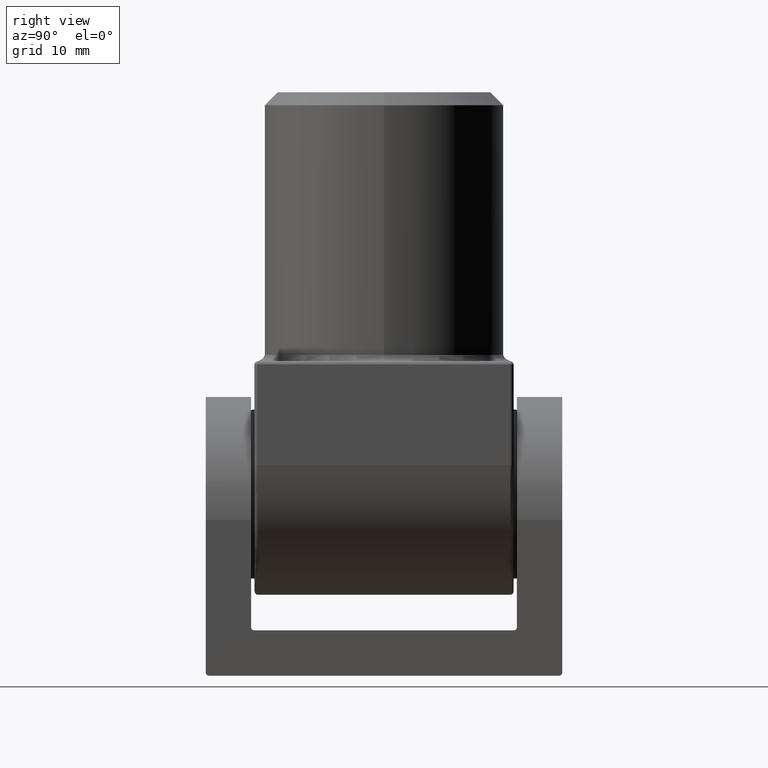
[diagram: clean part render]
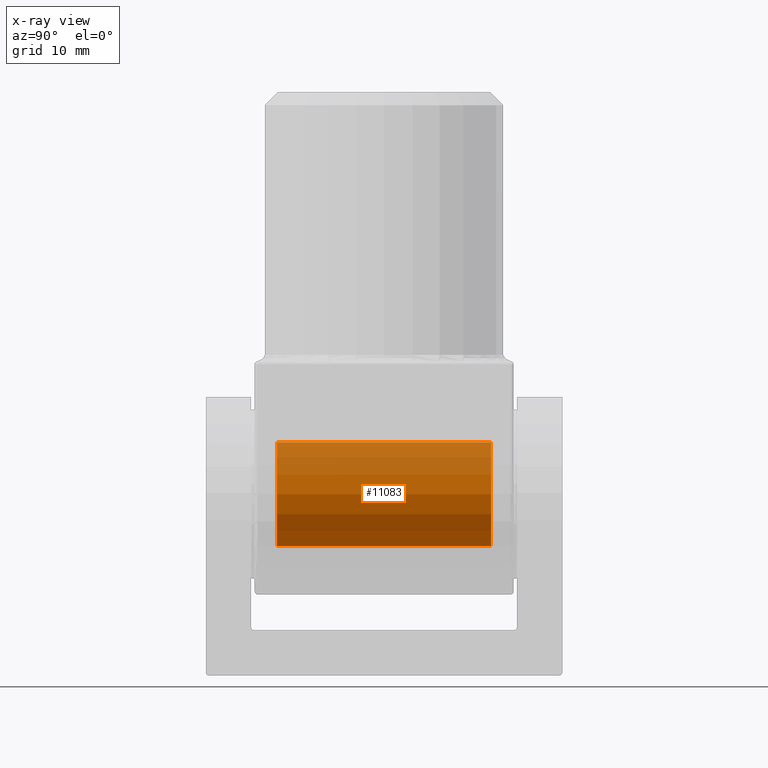
[diagram: x-ray — body ghosted, one internal face saturated and labeled with its STEP entity id]
A machine part, right view, then the same camera in x-ray: the body is ghosted and one INTERNAL B-rep face — a face not visible from any outside direction — is saturated and labeled: STEP entity #11083.
In plain terms, the highlighted cylindrical surface (partial cylindrical patch) has radius 8 mm, axis along (-0, -1, -0).
Its self-contained STEP definition (entity closure, byte-faithful):
#1034 = EDGE_CURVE ( 'NONE', #18433, #16733, #11225, .T. ) ;
#1615 = AXIS2_PLACEMENT_3D ( 'NONE', #4692, #11097, #9161 ) ;
#1633 = ORIENTED_EDGE ( 'NONE', *, *, #6918, .F. ) ;
#3902 = EDGE_LOOP ( 'NONE', ( #7714, #16349, #1633, #16361 ) ) ;
#4622 = FACE_OUTER_BOUND ( 'NONE', #3902, .T. ) ;
#4692 = CARTESIAN_POINT ( 'NONE',  ( 0.000000000000000000, -16.50000000000000000, 0.000000000000000000 ) ) ;
#4750 = CARTESIAN_POINT ( 'NONE',  ( 9.797174393178827630E-16, -16.50000000000000000, 8.000000000000000000 ) ) ;
#4917 = VECTOR ( 'NONE', #15300, 1000.000000000000000 ) ;
#5041 = DIRECTION ( 'NONE',  ( 0.000000000000000000, 0.000000000000000000, -1.000000000000000000 ) ) ;
#5155 = VERTEX_POINT ( 'NONE', #14306 ) ;
#6918 = EDGE_CURVE ( 'NONE', #5155, #15254, #15122, .T. ) ;
#7485 = CARTESIAN_POINT ( 'NONE',  ( 0.000000000000000000, 0.000000000000000000, -8.000000000000001776 ) ) ;
#7714 = ORIENTED_EDGE ( 'NONE', *, *, #1034, .T. ) ;
#7837 = CARTESIAN_POINT ( 'NONE',  ( 9.797174393178827630E-16, 16.50000000000000000, 8.000000000000000000 ) ) ;
#8635 = CARTESIAN_POINT ( 'NONE',  ( 0.000000000000000000, 16.50000000000000000, 0.000000000000000000 ) ) ;
#8672 = EDGE_CURVE ( 'NONE', #16733, #15254, #9432, .T. ) ;
#9161 = DIRECTION ( 'NONE',  ( 0.000000000000000000, 0.000000000000000000, -1.000000000000000000 ) ) ;
#9432 = LINE ( 'NONE', #15561, #4917 ) ;
#9482 = AXIS2_PLACEMENT_3D ( 'NONE', #8635, #18696, #18581 ) ;
#10399 = CARTESIAN_POINT ( 'NONE',  ( 0.000000000000000000, 16.50000000000000000, -8.000000000000000000 ) ) ;
#10808 = CARTESIAN_POINT ( 'NONE',  ( 0.000000000000000000, 0.000000000000000000, 0.000000000000000000 ) ) ;
#11083 = ADVANCED_FACE ( 'NONE', ( #4622 ), #16183, .T. ) ;
#11097 = DIRECTION ( 'NONE',  ( 0.000000000000000000, -1.000000000000000000, 0.000000000000000000 ) ) ;
#11225 = CIRCLE ( 'NONE', #9482, 8.000000000000000000 ) ;
#11884 = VECTOR ( 'NONE', #17644, 1000.000000000000000 ) ;
#14306 = CARTESIAN_POINT ( 'NONE',  ( 0.000000000000000000, -16.50000000000000000, -8.000000000000000000 ) ) ;
#14611 = LINE ( 'NONE', #7485, #11884 ) ;
#15122 = CIRCLE ( 'NONE', #1615, 8.000000000000000000 ) ;
#15254 = VERTEX_POINT ( 'NONE', #4750 ) ;
#15300 = DIRECTION ( 'NONE',  ( -0.000000000000000000, -1.000000000000000000, -0.000000000000000000 ) ) ;
#15561 = CARTESIAN_POINT ( 'NONE',  ( 9.797174393178827630E-16, 0.000000000000000000, 8.000000000000001776 ) ) ;
#16077 = EDGE_CURVE ( 'NONE', #18433, #5155, #14611, .T. ) ;
#16183 = CYLINDRICAL_SURFACE ( 'NONE', #16681, 8.000000000000001776 ) ;
#16349 = ORIENTED_EDGE ( 'NONE', *, *, #8672, .T. ) ;
#16361 = ORIENTED_EDGE ( 'NONE', *, *, #16077, .F. ) ;
#16681 = AXIS2_PLACEMENT_3D ( 'NONE', #10808, #18235, #5041 ) ;
#16733 = VERTEX_POINT ( 'NONE', #7837 ) ;
#17644 = DIRECTION ( 'NONE',  ( -0.000000000000000000, -1.000000000000000000, -0.000000000000000000 ) ) ;
#18235 = DIRECTION ( 'NONE',  ( -0.000000000000000000, -1.000000000000000000, -0.000000000000000000 ) ) ;
#18433 = VERTEX_POINT ( 'NONE', #10399 ) ;
#18581 = DIRECTION ( 'NONE',  ( 0.000000000000000000, 0.000000000000000000, -1.000000000000000000 ) ) ;
#18696 = DIRECTION ( 'NONE',  ( -0.000000000000000000, -1.000000000000000000, -0.000000000000000000 ) ) ;